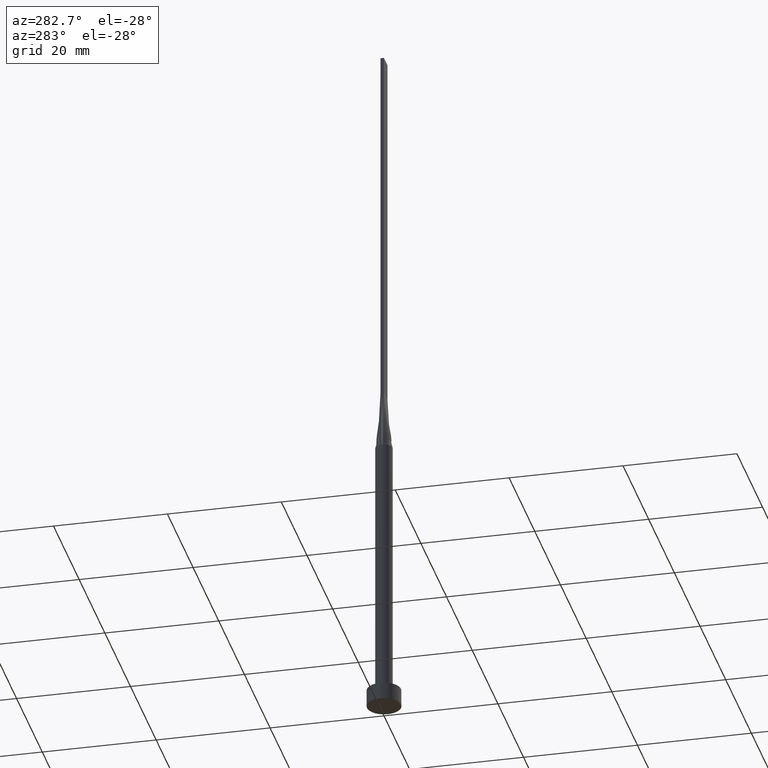
[diagram: clean part render]
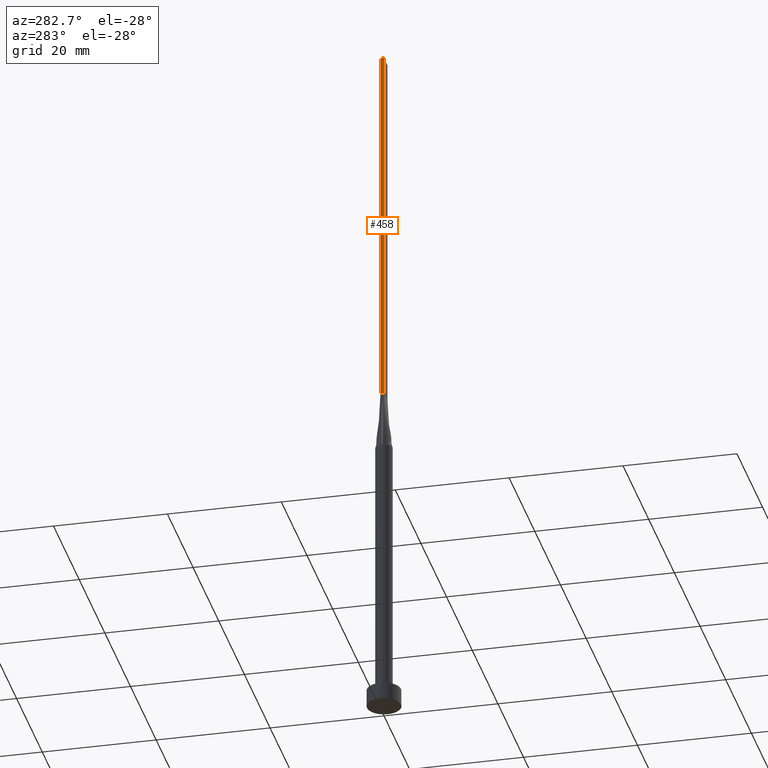
[diagram: same view with one face highlighted and labeled with its STEP entity id]
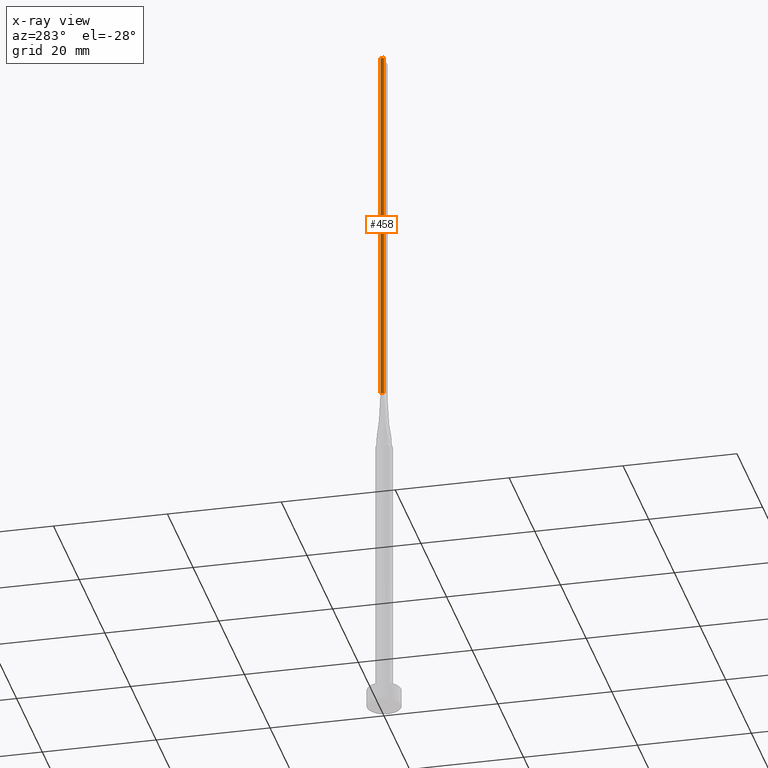
[diagram: x-ray of the same camera — body ghosted, the highlighted face saturated]
A machine part, auxiliary view. The second image highlights one B-rep face of the part: STEP entity #458.
The next image is the same camera in x-ray: the body ghosted, the highlighted face saturated — about 0% of this face is hidden behind the body in this view.
In plain terms, the highlighted planar face has unit normal (1, -0, 0).
Its self-contained STEP definition (entity closure, byte-faithful):
#15 = CARTESIAN_POINT ( 'NONE',  ( -1.399999999999999689, 0.3000000000000002109, 125.0000000000000000 ) ) ;
#57 = CARTESIAN_POINT ( 'NONE',  ( -1.399999999999999689, 0.3000000000000002109, 60.00000000000000711 ) ) ;
#63 = ORIENTED_EDGE ( 'NONE', *, *, #182, .T. ) ;
#97 = CARTESIAN_POINT ( 'NONE',  ( -1.399999999999999689, 0.3000000000000002109, 125.0000000000000000 ) ) ;
#115 = DIRECTION ( 'NONE',  ( 1.000000000000000000, -3.614007241618349264E-16, 0.000000000000000000 ) ) ;
#135 = VERTEX_POINT ( 'NONE', #97 ) ;
#146 = LINE ( 'NONE', #561, #317 ) ;
#153 = DIRECTION ( 'NONE',  ( -3.614007241618349264E-16, -1.000000000000000000, 0.000000000000000000 ) ) ;
#156 = DIRECTION ( 'NONE',  ( 3.614007241618349264E-16, 1.000000000000000000, 0.000000000000000000 ) ) ;
#160 = FACE_OUTER_BOUND ( 'NONE', #244, .T. ) ;
#161 = CARTESIAN_POINT ( 'NONE',  ( -1.399999999999999911, -0.2999999999999996003, 125.0000000000000000 ) ) ;
#182 = EDGE_CURVE ( 'NONE', #135, #387, #567, .T. ) ;
#183 = EDGE_CURVE ( 'NONE', #248, #545, #389, .T. ) ;
#212 = DIRECTION ( 'NONE',  ( -0.000000000000000000, -0.000000000000000000, -1.000000000000000000 ) ) ;
#242 = CARTESIAN_POINT ( 'NONE',  ( -1.399999999999999911, -0.2999999999999996003, 125.0000000000000000 ) ) ;
#244 = EDGE_LOOP ( 'NONE', ( #252, #560, #370, #63 ) ) ;
#248 = VERTEX_POINT ( 'NONE', #242 ) ;
#252 = ORIENTED_EDGE ( 'NONE', *, *, #336, .T. ) ;
#267 = AXIS2_PLACEMENT_3D ( 'NONE', #519, #115, #156 ) ;
#273 = EDGE_CURVE ( 'NONE', #135, #248, #418, .T. ) ;
#296 = PLANE ( 'NONE',  #267 ) ;
#299 = CARTESIAN_POINT ( 'NONE',  ( -1.399999999999999689, 0.3000000000000002109, 125.0000000000000000 ) ) ;
#317 = VECTOR ( 'NONE', #552, 1000.000000000000000 ) ;
#336 = EDGE_CURVE ( 'NONE', #387, #545, #146, .T. ) ;
#364 = VECTOR ( 'NONE', #153, 1000.000000000000000 ) ;
#370 = ORIENTED_EDGE ( 'NONE', *, *, #273, .F. ) ;
#387 = VERTEX_POINT ( 'NONE', #57 ) ;
#389 = LINE ( 'NONE', #161, #464 ) ;
#418 = LINE ( 'NONE', #15, #364 ) ;
#428 = VECTOR ( 'NONE', #571, 1000.000000000000000 ) ;
#458 = ADVANCED_FACE ( 'NONE', ( #160 ), #296, .F. ) ;
#464 = VECTOR ( 'NONE', #212, 1000.000000000000000 ) ;
#479 = CARTESIAN_POINT ( 'NONE',  ( -1.399999999999999911, -0.2999999999999996003, 60.00000000000000711 ) ) ;
#519 = CARTESIAN_POINT ( 'NONE',  ( -1.399999999999999689, 0.3000000000000002109, 125.0000000000000000 ) ) ;
#545 = VERTEX_POINT ( 'NONE', #479 ) ;
#552 = DIRECTION ( 'NONE',  ( -3.614007241618349264E-16, -1.000000000000000000, 0.000000000000000000 ) ) ;
#560 = ORIENTED_EDGE ( 'NONE', *, *, #183, .F. ) ;
#561 = CARTESIAN_POINT ( 'NONE',  ( -1.399999999999999689, 0.3000000000000002109, 60.00000000000000711 ) ) ;
#567 = LINE ( 'NONE', #299, #428 ) ;
#571 = DIRECTION ( 'NONE',  ( -0.000000000000000000, -0.000000000000000000, -1.000000000000000000 ) ) ;